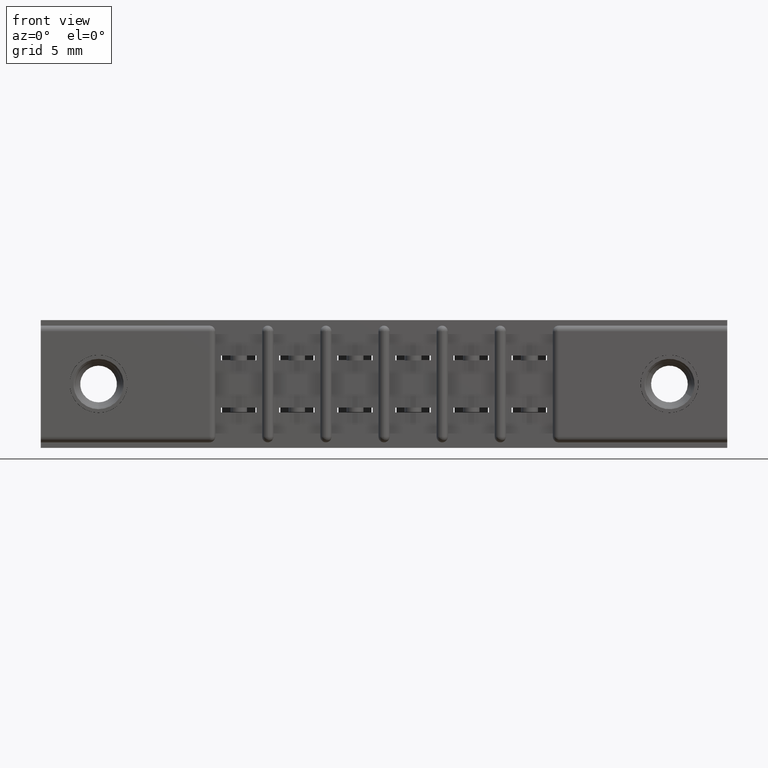
[diagram: clean part render]
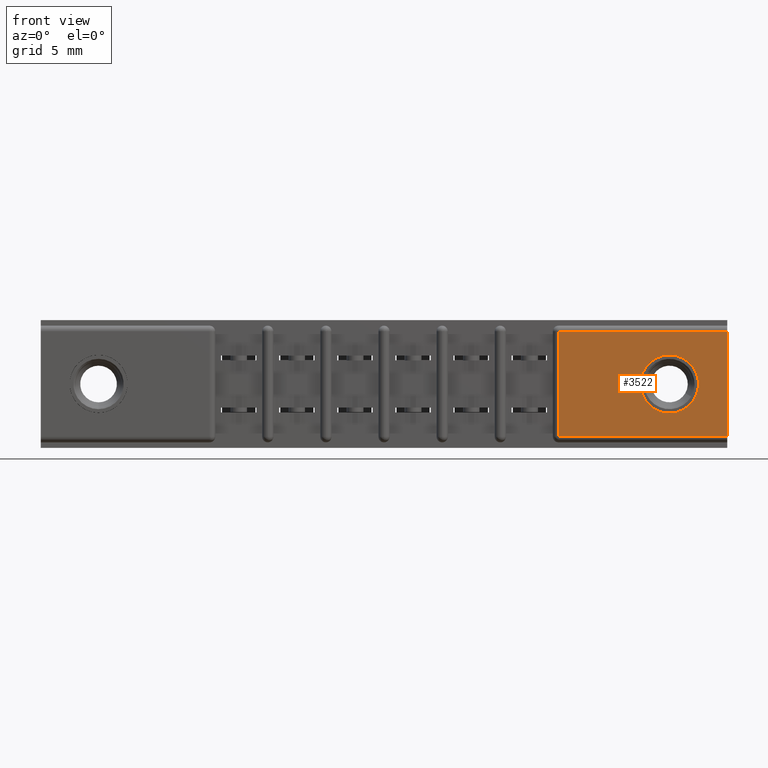
[diagram: same view with one face highlighted and labeled with its STEP entity id]
A machine part, front view. The second image highlights one B-rep face of the part: STEP entity #3522.
In plain terms, the highlighted planar face has unit normal (0, -1, 0).
Its self-contained STEP definition (entity closure, byte-faithful):
#83 = LINE ( 'NONE', #529, #5436 ) ;
#198 = DIRECTION ( 'NONE',  ( 0.0000000000000000000, 0.0000000000000000000, 1.000000000000000000 ) ) ;
#364 = CARTESIAN_POINT ( 'NONE',  ( 1.389000000000000200, 0.0000000000000000000, -0.02999999999999995400 ) ) ;
#529 = CARTESIAN_POINT ( 'NONE',  ( 0.0000000000000000000, 0.0000000000000000000, -0.02999999999999995400 ) ) ;
#555 = ORIENTED_EDGE ( 'NONE', *, *, #3719, .F. ) ;
#1036 = CARTESIAN_POINT ( 'NONE',  ( 1.687000000000000900, 0.0000000000000000000, -0.1715000000000000100 ) ) ;
#1296 = DIRECTION ( 'NONE',  ( -0.0000000000000000000, -0.0000000000000000000, -1.000000000000000000 ) ) ;
#1542 = DIRECTION ( 'NONE',  ( 1.000000000000000000, -0.0000000000000000000, -0.0000000000000000000 ) ) ;
#2243 = PLANE ( 'NONE',  #4519 ) ;
#2585 = EDGE_CURVE ( 'NONE', #7834, #4747, #83, .T. ) ;
#2701 = LINE ( 'NONE', #3450, #10902 ) ;
#2994 = DIRECTION ( 'NONE',  ( 0.0000000000000000000, -0.0000000000000000000, -1.000000000000000000 ) ) ;
#3118 = FACE_OUTER_BOUND ( 'NONE', #5995, .T. ) ;
#3370 = VERTEX_POINT ( 'NONE', #8568 ) ;
#3392 = DIRECTION ( 'NONE',  ( 0.0000000000000000000, -1.000000000000000000, 0.0000000000000000000 ) ) ;
#3450 = CARTESIAN_POINT ( 'NONE',  ( 1.842000000000000700, 0.0000000000000000000, 0.0000000000000000000 ) ) ;
#3522 = ADVANCED_FACE ( 'NONE', ( #7603, #3118 ), #2243, .T. ) ;
#3613 = VERTEX_POINT ( 'NONE', #8726 ) ;
#3719 = EDGE_CURVE ( 'NONE', #3613, #4596, #11325, .T. ) ;
#3825 = ORIENTED_EDGE ( 'NONE', *, *, #11564, .F. ) ;
#4074 = CARTESIAN_POINT ( 'NONE',  ( 1.389000000000000200, 0.0000000000000000000, -0.3130000000000000600 ) ) ;
#4175 = CARTESIAN_POINT ( 'NONE',  ( 1.842000000000000700, 0.0000000000000000000, -0.3130000000000000600 ) ) ;
#4519 = AXIS2_PLACEMENT_3D ( 'NONE', #8684, #4869, #2994 ) ;
#4596 = VERTEX_POINT ( 'NONE', #6306 ) ;
#4637 = DIRECTION ( 'NONE',  ( 0.0000000000000000000, 0.0000000000000000000, -1.000000000000000000 ) ) ;
#4747 = VERTEX_POINT ( 'NONE', #364 ) ;
#4869 = DIRECTION ( 'NONE',  ( 0.0000000000000000000, -1.000000000000000000, 0.0000000000000000000 ) ) ;
#5266 = DIRECTION ( 'NONE',  ( 0.0000000000000000000, 0.0000000000000000000, 1.000000000000000000 ) ) ;
#5436 = VECTOR ( 'NONE', #7946, 39.37007874015748100 ) ;
#5995 = EDGE_LOOP ( 'NONE', ( #6359, #6989, #10275, #6089 ) ) ;
#6089 = ORIENTED_EDGE ( 'NONE', *, *, #9167, .F. ) ;
#6306 = CARTESIAN_POINT ( 'NONE',  ( 1.687000000000000900, 0.0000000000000000000, -0.09349999999999991700 ) ) ;
#6359 = ORIENTED_EDGE ( 'NONE', *, *, #2585, .T. ) ;
#6365 = VECTOR ( 'NONE', #1296, 39.37007874015748100 ) ;
#6938 = CARTESIAN_POINT ( 'NONE',  ( 1.687000000000000900, 0.0000000000000000000, -0.1715000000000000100 ) ) ;
#6989 = ORIENTED_EDGE ( 'NONE', *, *, #11408, .T. ) ;
#7040 = CARTESIAN_POINT ( 'NONE',  ( 1.842000000000000700, 0.0000000000000000000, -0.3130000000000000600 ) ) ;
#7164 = EDGE_CURVE ( 'NONE', #3370, #9682, #10529, .T. ) ;
#7603 = FACE_BOUND ( 'NONE', #8580, .T. ) ;
#7640 = AXIS2_PLACEMENT_3D ( 'NONE', #1036, #8409, #198 ) ;
#7834 = VERTEX_POINT ( 'NONE', #11200 ) ;
#7946 = DIRECTION ( 'NONE',  ( -1.000000000000000000, 0.0000000000000000000, 0.0000000000000000000 ) ) ;
#8409 = DIRECTION ( 'NONE',  ( 0.0000000000000000000, -1.000000000000000000, 0.0000000000000000000 ) ) ;
#8568 = CARTESIAN_POINT ( 'NONE',  ( 1.389000000000000200, 0.0000000000000000000, -0.3130000000000000600 ) ) ;
#8580 = EDGE_LOOP ( 'NONE', ( #555, #3825 ) ) ;
#8684 = CARTESIAN_POINT ( 'NONE',  ( 0.0000000000000000000, 0.0000000000000000000, -0.3430000000000000300 ) ) ;
#8726 = CARTESIAN_POINT ( 'NONE',  ( 1.687000000000000900, 0.0000000000000000000, -0.2495000000000001100 ) ) ;
#8938 = AXIS2_PLACEMENT_3D ( 'NONE', #6938, #3392, #5266 ) ;
#9167 = EDGE_CURVE ( 'NONE', #7834, #9682, #2701, .T. ) ;
#9682 = VERTEX_POINT ( 'NONE', #4175 ) ;
#10238 = VECTOR ( 'NONE', #1542, 39.37007874015748100 ) ;
#10275 = ORIENTED_EDGE ( 'NONE', *, *, #7164, .T. ) ;
#10529 = LINE ( 'NONE', #7040, #10238 ) ;
#10710 = CIRCLE ( 'NONE', #7640, 0.07800000000000008300 ) ;
#10902 = VECTOR ( 'NONE', #4637, 39.37007874015748100 ) ;
#11200 = CARTESIAN_POINT ( 'NONE',  ( 1.842000000000000700, 0.0000000000000000000, -0.02999999999999995400 ) ) ;
#11325 = CIRCLE ( 'NONE', #8938, 0.07800000000000008300 ) ;
#11408 = EDGE_CURVE ( 'NONE', #4747, #3370, #11570, .T. ) ;
#11564 = EDGE_CURVE ( 'NONE', #4596, #3613, #10710, .T. ) ;
#11570 = LINE ( 'NONE', #4074, #6365 ) ;